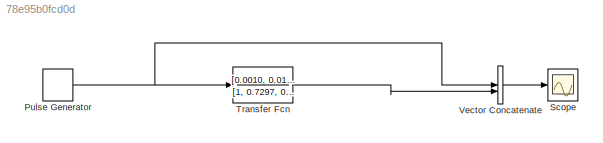
MODEL slx_78e95b0fcd0d
KIND model
CONFIG AbsTol = auto
CONFIG EnableMultiTasking = off
CONFIG FixedStep = auto
CONFIG MaxStep = auto
CONFIG MinStep = auto
CONFIG RelTol = 1e-3
CONFIG SampleTimeConstraint = Unconstrained
CONFIG SolverName = VariableStepAuto
CONFIG StartTime = 0.0
CONFIG StopTime = 40
BLOCK [DiscretePulseGenerator] Pulse Generator
  Amplitude = 50
  Period = 20
  PulseWidth = 10
  SampleTime = 0
BLOCK [Scope] Scope
  Floating = off
  GraphicalSettings = {"GraphicalSettings":{"LegacySettings":true,"Style":{"Style":{"PlotType":"Auto"}}}}
  NumInputPorts = 1
  ScopeFrameLocation = window
  WasSavedAsWebScope = on
  WindowPosition = [360.000000,150.000000,560.000000,420.000000,]
BLOCK [TransferFcn] Transfer Fcn
  Denominator = [1, 0.7297, 0.5611, 0.0563]
  Numerator = [0.0010, 0.0144, 0.0128]
BLOCK [Concatenate] Vector Concatenate
NET Pulse Generator:1 -> Transfer Fcn:1, Vector Concatenate:1
LINE Transfer Fcn:1 -> Vector Concatenate:2
LINE Vector Concatenate:1 -> Scope:1
note: NET lines group one-source signal fan-out (src -> all destinations, sorted); 1:1 wires keep LINE
